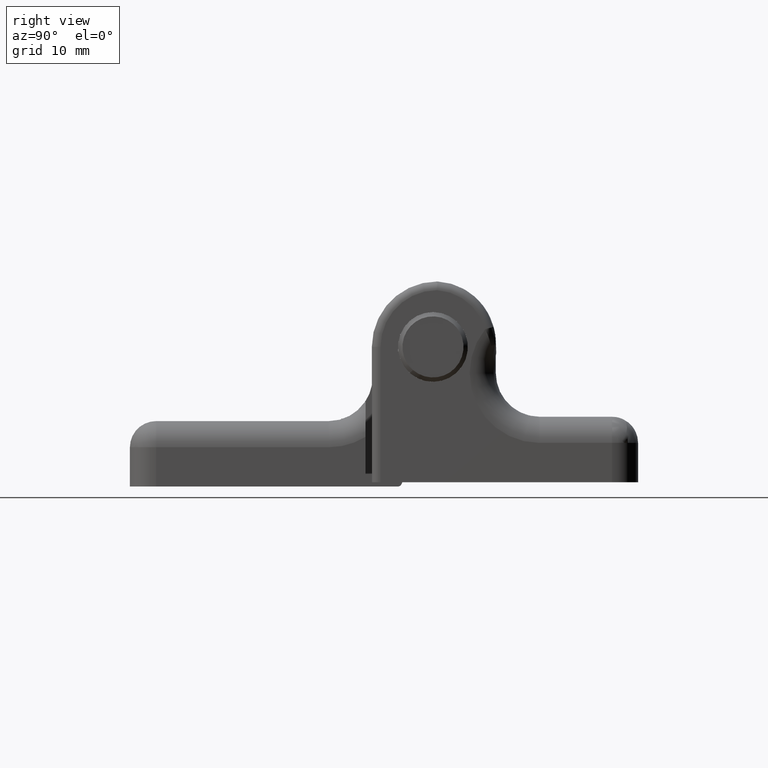
[diagram: clean part render]
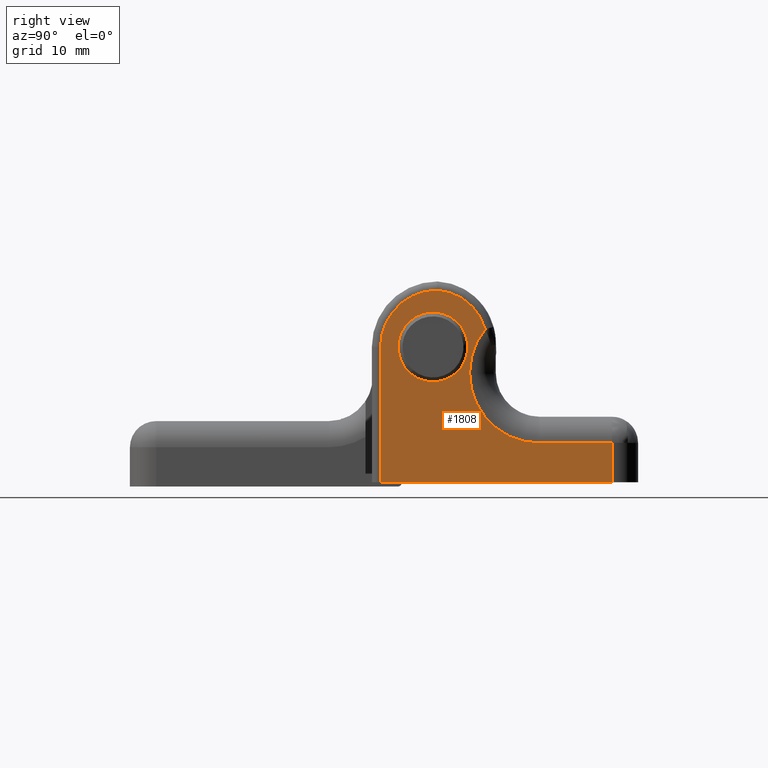
[diagram: same view with one face highlighted and labeled with its STEP entity id]
A machine part, right view. The second image highlights one B-rep face of the part: STEP entity #1808.
In plain terms, the highlighted planar face has unit normal (-1, 0, 0).
Its self-contained STEP definition (entity closure, byte-faithful):
#58=PLANE('',#1964);
#118=FACE_BOUND('',#272,.T.);
#159=FACE_OUTER_BOUND('',#271,.T.);
#271=EDGE_LOOP('',(#1343,#1344,#1345,#1346,#1347,#1348,#1349));
#272=EDGE_LOOP('',(#1350));
#422=LINE('',#2926,#567);
#428=LINE('',#2949,#573);
#429=LINE('',#2951,#574);
#430=LINE('',#2953,#575);
#567=VECTOR('',#2287,26.5);
#573=VECTOR('',#2309,15.5);
#574=VECTOR('',#2310,4.5);
#575=VECTOR('',#2311,8.3);
#666=CIRCLE('',#1910,4.);
#697=CIRCLE('',#1965,6.5);
#698=CIRCLE('',#1966,8.);
#699=CIRCLE('',#1967,6.1);
#773=VERTEX_POINT('',#2709);
#834=VERTEX_POINT('',#2923);
#835=VERTEX_POINT('',#2925);
#843=VERTEX_POINT('',#2946);
#844=VERTEX_POINT('',#2947);
#845=VERTEX_POINT('',#2950);
#846=VERTEX_POINT('',#2952);
#847=VERTEX_POINT('',#2954);
#947=EDGE_CURVE('',#773,#773,#666,.T.);
#1032=EDGE_CURVE('',#835,#834,#422,.T.);
#1043=EDGE_CURVE('',#843,#844,#697,.T.);
#1044=EDGE_CURVE('',#844,#835,#428,.T.);
#1045=EDGE_CURVE('',#834,#845,#429,.T.);
#1046=EDGE_CURVE('',#845,#846,#430,.T.);
#1047=EDGE_CURVE('',#846,#847,#698,.T.);
#1048=EDGE_CURVE('',#847,#843,#699,.T.);
#1343=ORIENTED_EDGE('',*,*,#1043,.T.);
#1344=ORIENTED_EDGE('',*,*,#1044,.T.);
#1345=ORIENTED_EDGE('',*,*,#1032,.T.);
#1346=ORIENTED_EDGE('',*,*,#1045,.T.);
#1347=ORIENTED_EDGE('',*,*,#1046,.T.);
#1348=ORIENTED_EDGE('',*,*,#1047,.T.);
#1349=ORIENTED_EDGE('',*,*,#1048,.T.);
#1350=ORIENTED_EDGE('',*,*,#947,.T.);
#1808=ADVANCED_FACE('',(#159,#118),#58,.F.);
#1910=AXIS2_PLACEMENT_3D('',#2710,#2142,#2143);
#1964=AXIS2_PLACEMENT_3D('',#2945,#2305,#2306);
#1965=AXIS2_PLACEMENT_3D('',#2948,#2307,#2308);
#1966=AXIS2_PLACEMENT_3D('',#2955,#2312,#2313);
#1967=AXIS2_PLACEMENT_3D('',#2956,#2314,#2315);
#2142=DIRECTION('center_axis',(-1.,0.,0.));
#2143=DIRECTION('ref_axis',(0.,0.,1.));
#2287=DIRECTION('',(0.,1.,0.));
#2305=DIRECTION('center_axis',(-1.,0.,0.));
#2306=DIRECTION('ref_axis',(0.,0.,1.));
#2307=DIRECTION('center_axis',(1.,0.,0.));
#2308=DIRECTION('ref_axis',(0.,0.,1.));
#2309=DIRECTION('',(0.,0.,-1.));
#2310=DIRECTION('',(0.,0.,1.));
#2311=DIRECTION('',(0.,-1.,0.));
#2312=DIRECTION('center_axis',(-1.,0.,0.));
#2313=DIRECTION('ref_axis',(0.,0.,1.));
#2314=DIRECTION('center_axis',(1.,0.,0.));
#2315=DIRECTION('ref_axis',(0.,0.,1.));
#2709=CARTESIAN_POINT('',(37.75,21.9677756572818,19.9977729309299));
#2710=CARTESIAN_POINT('Origin',(37.75,21.9677756572818,15.9977729309299));
#2923=CARTESIAN_POINT('',(37.75,42.4677756572818,0.497772930929919));
#2925=CARTESIAN_POINT('',(37.75,15.9677756572818,0.497772930929919));
#2926=CARTESIAN_POINT('',(37.75,15.9677756572818,0.497772930929919));
#2945=CARTESIAN_POINT('Origin',(37.75,14.6427756572818,-0.602223998597282));
#2946=CARTESIAN_POINT('',(37.75,22.4395211150545,22.497711521474));
#2947=CARTESIAN_POINT('',(37.75,15.9677756572818,15.9977729309299));
#2948=CARTESIAN_POINT('Origin',(37.75,22.4677756572818,15.9977729309299));
#2949=CARTESIAN_POINT('',(37.75,15.9677756572818,15.9977729309299));
#2950=CARTESIAN_POINT('',(37.75,42.4677756572818,4.99777293092991));
#2951=CARTESIAN_POINT('',(37.75,42.4677756572818,0.497772930929919));
#2952=CARTESIAN_POINT('',(37.75,34.1677756572818,4.99777293092992));
#2953=CARTESIAN_POINT('',(37.75,42.4677756572818,4.99777293092991));
#2954=CARTESIAN_POINT('',(37.75,27.9485298067387,18.0297686632912));
#2955=CARTESIAN_POINT('Origin',(37.75,34.1677756572818,12.9977729309299));
#2956=CARTESIAN_POINT('Origin',(37.75,22.0677756572819,16.409049491551));